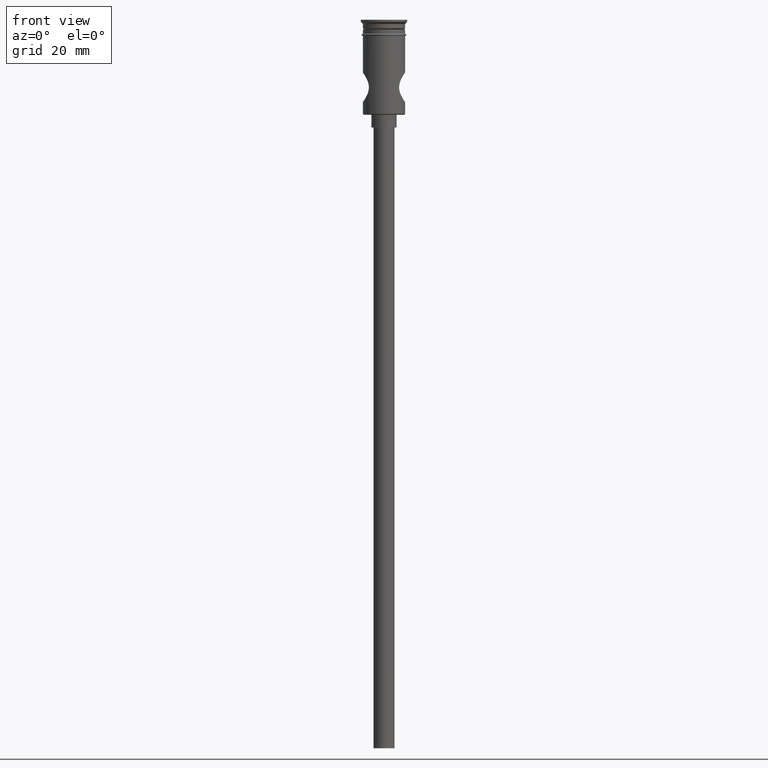
[diagram: clean part render]
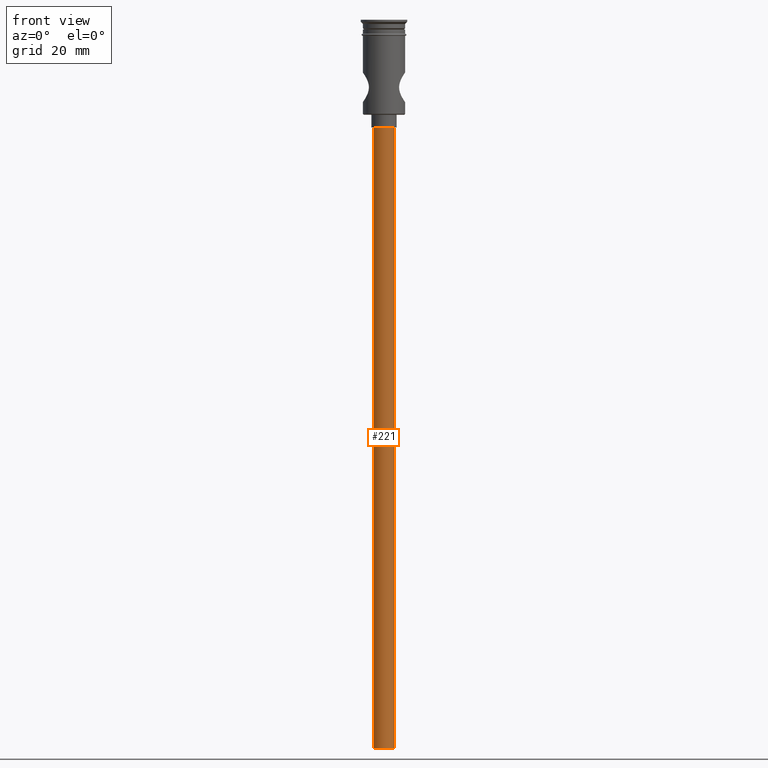
[diagram: same view with one face highlighted and labeled with its STEP entity id]
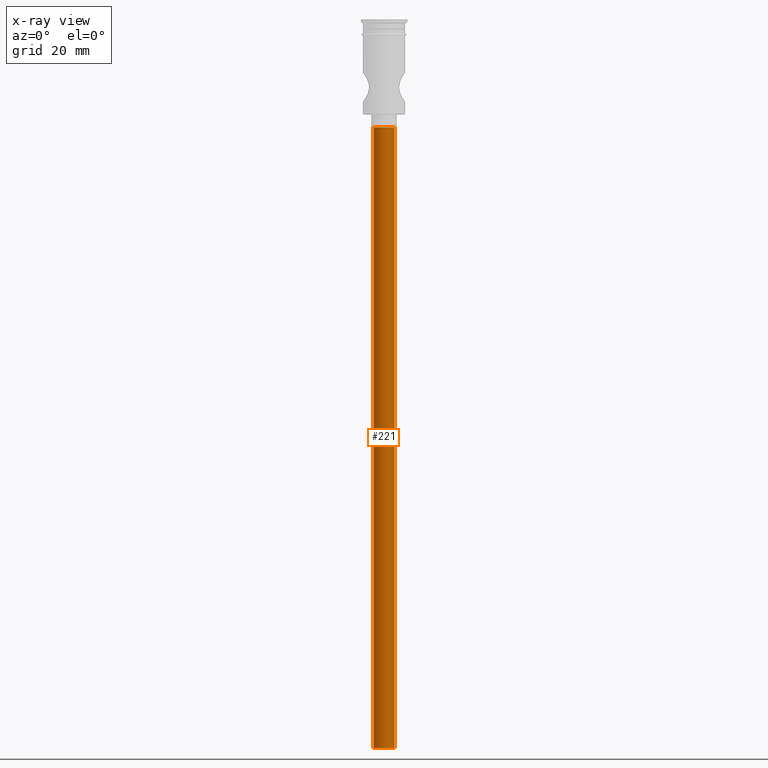
[diagram: x-ray of the same camera — body ghosted, the highlighted face saturated]
A machine part, front view. The second image highlights one B-rep face of the part: STEP entity #221.
The next image is the same camera in x-ray: the body ghosted, the highlighted face saturated — about 0% of this face is hidden behind the body in this view.
In plain terms, the highlighted cylindrical surface (edge-blend (fillet) strip) has radius 2.5 mm, axis along (-0, -0, 1).
Its self-contained STEP definition (entity closure, byte-faithful):
#8 = DIRECTION ( 'NONE',  ( 0.000000000000000000, 0.000000000000000000, -1.000000000000000000 ) ) ;
#39 = EDGE_CURVE ( 'NONE', #242, #1398, #295, .T. ) ;
#88 = CARTESIAN_POINT ( 'NONE',  ( -2.500000000000000000, 3.061616997868383141E-16, -172.5000000000000000 ) ) ;
#112 = EDGE_CURVE ( 'NONE', #966, #1398, #619, .T. ) ;
#221 = ADVANCED_FACE ( 'NONE', ( #588 ), #1051, .T. ) ;
#242 = VERTEX_POINT ( 'NONE', #88 ) ;
#295 = LINE ( 'NONE', #758, #1165 ) ;
#304 = CARTESIAN_POINT ( 'NONE',  ( -2.500000000000000000, 3.061616997868383141E-16, -25.50000000000000000 ) ) ;
#345 = DIRECTION ( 'NONE',  ( 0.000000000000000000, 0.000000000000000000, -1.000000000000000000 ) ) ;
#445 = CARTESIAN_POINT ( 'NONE',  ( 0.000000000000000000, 0.000000000000000000, -25.50000000000000000 ) ) ;
#477 = EDGE_CURVE ( 'NONE', #1324, #242, #1279, .T. ) ;
#521 = EDGE_LOOP ( 'NONE', ( #1438, #1014, #906, #1177 ) ) ;
#588 = FACE_OUTER_BOUND ( 'NONE', #521, .T. ) ;
#619 = CIRCLE ( 'NONE', #1372, 2.500000000000000000 ) ;
#661 = DIRECTION ( 'NONE',  ( 1.000000000000000000, 0.000000000000000000, 0.000000000000000000 ) ) ;
#715 = VECTOR ( 'NONE', #1337, 1000.000000000000000 ) ;
#758 = CARTESIAN_POINT ( 'NONE',  ( -2.500000000000000000, 3.061616997868383141E-16, -172.5000000000000000 ) ) ;
#778 = DIRECTION ( 'NONE',  ( -0.000000000000000000, -0.000000000000000000, 1.000000000000000000 ) ) ;
#839 = CARTESIAN_POINT ( 'NONE',  ( 2.500000000000000000, 0.000000000000000000, -172.5000000000000000 ) ) ;
#905 = CARTESIAN_POINT ( 'NONE',  ( 2.500000000000000000, 0.000000000000000000, -172.5000000000000000 ) ) ;
#906 = ORIENTED_EDGE ( 'NONE', *, *, #1078, .T. ) ;
#956 = CARTESIAN_POINT ( 'NONE',  ( 2.500000000000000000, 0.000000000000000000, -25.50000000000000000 ) ) ;
#966 = VERTEX_POINT ( 'NONE', #956 ) ;
#1014 = ORIENTED_EDGE ( 'NONE', *, *, #477, .F. ) ;
#1034 = CARTESIAN_POINT ( 'NONE',  ( 0.000000000000000000, 0.000000000000000000, -172.5000000000000000 ) ) ;
#1051 = CYLINDRICAL_SURFACE ( 'NONE', #1302, 2.500000000000000000 ) ;
#1078 = EDGE_CURVE ( 'NONE', #1324, #966, #1224, .T. ) ;
#1113 = CARTESIAN_POINT ( 'NONE',  ( 0.000000000000000000, 0.000000000000000000, -172.5000000000000000 ) ) ;
#1155 = DIRECTION ( 'NONE',  ( -1.000000000000000000, 0.000000000000000000, 0.000000000000000000 ) ) ;
#1165 = VECTOR ( 'NONE', #1211, 1000.000000000000000 ) ;
#1177 = ORIENTED_EDGE ( 'NONE', *, *, #112, .T. ) ;
#1211 = DIRECTION ( 'NONE',  ( -0.000000000000000000, -0.000000000000000000, 1.000000000000000000 ) ) ;
#1224 = LINE ( 'NONE', #905, #715 ) ;
#1279 = CIRCLE ( 'NONE', #1392, 2.500000000000000000 ) ;
#1302 = AXIS2_PLACEMENT_3D ( 'NONE', #1113, #778, #661 ) ;
#1324 = VERTEX_POINT ( 'NONE', #839 ) ;
#1337 = DIRECTION ( 'NONE',  ( -0.000000000000000000, -0.000000000000000000, 1.000000000000000000 ) ) ;
#1369 = DIRECTION ( 'NONE',  ( -1.000000000000000000, 0.000000000000000000, 0.000000000000000000 ) ) ;
#1372 = AXIS2_PLACEMENT_3D ( 'NONE', #445, #345, #1369 ) ;
#1392 = AXIS2_PLACEMENT_3D ( 'NONE', #1034, #8, #1155 ) ;
#1398 = VERTEX_POINT ( 'NONE', #304 ) ;
#1438 = ORIENTED_EDGE ( 'NONE', *, *, #39, .F. ) ;